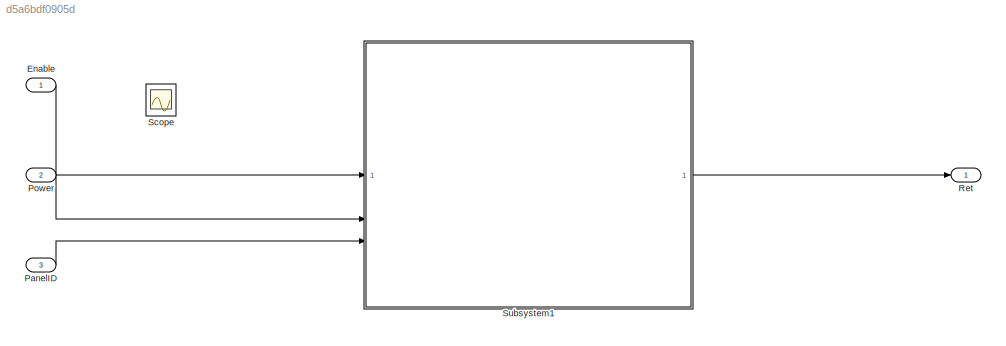
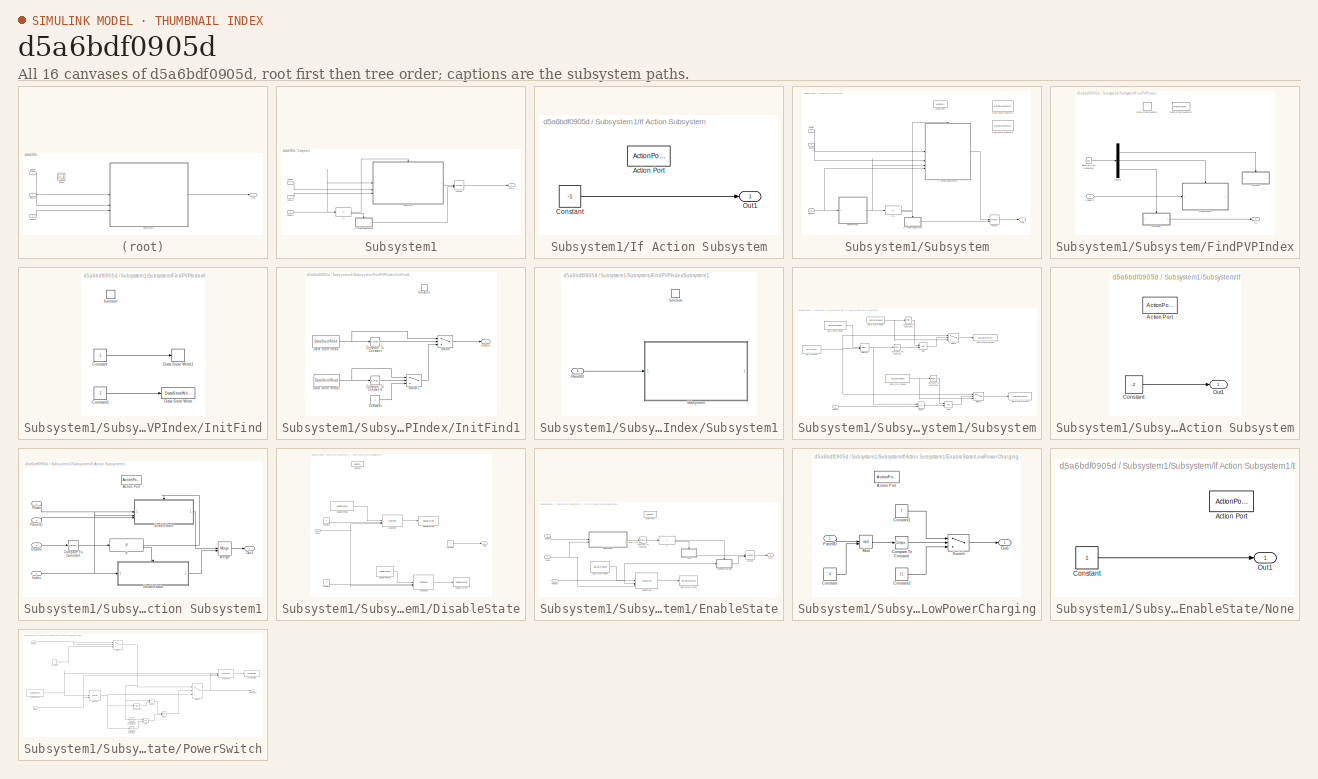
[diagram: thumbnail index - all 16 canvases of the model, root first then tree order]
MODEL slx_d5a6bdf0905d
KIND model
CONFIG AbsTol = auto
CONFIG EnableMultiTasking = off
CONFIG FixedStep = 1
CONFIG MaxStep = auto
CONFIG MinStep = auto
CONFIG RelTol = 1e-3
CONFIG SampleTimeConstraint = Unconstrained
CONFIG SolverName = FixedStepAuto
CONFIG StartTime = 0.0
CONFIG StopTime = 50000000
BLOCK [Inport] Enable
  OutDataTypeStr = int8
BLOCK [Inport] PanelID
  OutDataTypeStr = int32
  Port = 3
BLOCK [Inport] Power
  OutDataTypeStr = int32
  Port = 2
BLOCK [Outport] Ret
BLOCK [Scope] Scope
  Floating = off
  IOType = viewer
  NumInputPorts = 1
  ScopeSpecificationString = Simulink.scopes.TimeScopeBlockCfg('CurrentConfiguration', extmgr.ConfigurationSet(extmgr.Configuration('Core','General UI',true),extmgr.Configuration('Core','Source UI',true),extmgr.Configuration('Sources','WiredSimulink',true),extmgr.Configuration('Visuals','Time Domain',true),extmgr.Configuration('Tools','Plot Navigation',true),extmgr.Configuration('Tools','Measurements',true,'Version','2022b'))...<+49ch>
BLOCK [SubSystem] Subsystem1
BLOCK [Inport] Subsystem1/Enable
BLOCK [If] Subsystem1/If
BLOCK [SubSystem] Subsystem1/If Action Subsystem
  TreatAsAtomicUnit = on
BLOCK [ActionPort] Subsystem1/If Action Subsystem/Action Port
  ActionPortLabel = else
BLOCK [Constant] Subsystem1/If Action Subsystem/Constant
  OutDataTypeStr = int32
  Value = -1
BLOCK [Outport] Subsystem1/If Action Subsystem/Out1
BLOCK [Merge] Subsystem1/Merge
BLOCK [Outport] Subsystem1/Out1
BLOCK [Inport] Subsystem1/PanelID
  Port = 3
BLOCK [Inport] Subsystem1/Power
  Port = 2
BLOCK [SubSystem] Subsystem1/Subsystem
BLOCK [ActionPort] Subsystem1/Subsystem/Action Port
  ActionPortLabel = if(u1 > 0)
BLOCK [DataStoreMemory] Subsystem1/Subsystem/Data Store Memory1
  DataStoreName = PVPStates
  Dimensions = Len
  OutDataTypeStr = int32
  ShowAdditionalParam = off
  WriteAfterWriteMsg = warning
BLOCK [DataStoreMemory] Subsystem1/Subsystem/Data Store Memory2
  DataStoreName = PVPID
  Dimensions = Len
  OutDataTypeStr = int32
  ShowAdditionalParam = off
  WriteAfterWriteMsg = warning
BLOCK [Inport] Subsystem1/Subsystem/Enable
  Port = 2
BLOCK [SubSystem] Subsystem1/Subsystem/FindPVPIndex
  TreatAsAtomicUnit = on
BLOCK [DataStoreMemory] Subsystem1/Subsystem/FindPVPIndex/Data Store Memory
  DataStoreName = FindId
  OutDataTypeStr = int32
  ShowAdditionalParam = off
  WriteAfterWriteMsg = warning
BLOCK [DataStoreMemory] Subsystem1/Subsystem/FindPVPIndex/Data Store Memory1
  DataStoreName = FindEmptyId
  OutDataTypeStr = int32
  ShowAdditionalParam = off
  WriteAfterWriteMsg = warning
BLOCK [Demux] Subsystem1/Subsystem/FindPVPIndex/Demux
  Outputs = 3
BLOCK [Reference] Subsystem1/Subsystem/FindPVPIndex/Function-Call Generator  REF=simulink/Ports &
Subsystems/Function-Call
Generator
  SourceBlock = simulink/Ports &\nSubsystems/Function-Call\nGenerator
  SourceType = Function-Call Generator
BLOCK [Outport] Subsystem1/Subsystem/FindPVPIndex/Id
BLOCK [SubSystem] Subsystem1/Subsystem/FindPVPIndex/InitFind
BLOCK [Constant] Subsystem1/Subsystem/FindPVPIndex/InitFind/Constant
  OutDataTypeStr = int32
  Value = -1
BLOCK [Constant] Subsystem1/Subsystem/FindPVPIndex/InitFind/Constant1
  OutDataTypeStr = int32
  Value = -1
BLOCK [DataStoreWrite] Subsystem1/Subsystem/FindPVPIndex/InitFind/Data Store Write
  DataStoreName = FindEmptyId
  IndexOptions = Index vector (dialog)
  Indices = 1
  OutputSizes = 1
BLOCK [DataStoreWrite] Subsystem1/Subsystem/FindPVPIndex/InitFind/Data Store Write1
  DataStoreName = FindId
  IndexOptions = Index vector (dialog)
  Indices = 1
  OutputSizes = 1
BLOCK [TriggerPort] Subsystem1/Subsystem/FindPVPIndex/InitFind/function
  StatesWhenEnabling = held
  TriggerType = function-call
  VariantControl = Variant
BLOCK [SubSystem] Subsystem1/Subsystem/FindPVPIndex/InitFind1
BLOCK [Reference] Subsystem1/Subsystem/FindPVPIndex/InitFind1/Compare To Constant  REF=simulink/Logic and Bit
Operations/Compare
To Constant
  SourceBlock = simulink/Logic and Bit\nOperations/Compare\nTo Constant
  SourceType = Compare To Constant
BLOCK [Reference] Subsystem1/Subsystem/FindPVPIndex/InitFind1/Compare To Constant1  REF=simulink/Logic and Bit
Operations/Compare
To Constant
  SourceBlock = simulink/Logic and Bit\nOperations/Compare\nTo Constant
  SourceType = Compare To Constant
BLOCK [Constant] Subsystem1/Subsystem/FindPVPIndex/InitFind1/Constant
  OutDataTypeStr = int16
  Value = -1
BLOCK [DataStoreRead] Subsystem1/Subsystem/FindPVPIndex/InitFind1/Data Store Read
  DataStoreName = FindId
  IndexOptions = Index vector (dialog)
  Indices = 1
  OutputSizes = 1
BLOCK [DataStoreRead] Subsystem1/Subsystem/FindPVPIndex/InitFind1/Data Store Read1
  DataStoreName = FindEmptyId
  IndexOptions = Index vector (dialog)
  Indices = 1
  OutputSizes = 1
BLOCK [Switch] Subsystem1/Subsystem/FindPVPIndex/InitFind1/Switch
  Criteria = u2 ~= 0
  InputSameDT = off
  SaturateOnIntegerOverflow = off
BLOCK [Switch] Subsystem1/Subsystem/FindPVPIndex/InitFind1/Switch1
  Criteria = u2 ~= 0
  InputSameDT = off
  SaturateOnIntegerOverflow = off
BLOCK [TriggerPort] Subsystem1/Subsystem/FindPVPIndex/InitFind1/function
  StatesWhenEnabling = held
  TriggerType = function-call
  VariantControl = Variant
BLOCK [Outport] Subsystem1/Subsystem/FindPVPIndex/InitFind1/index
BLOCK [Inport] Subsystem1/Subsystem/FindPVPIndex/PanelID
BLOCK [SubSystem] Subsystem1/Subsystem/FindPVPIndex/Subsystem1
BLOCK [Inport] Subsystem1/Subsystem/FindPVPIndex/Subsystem1/PanelID
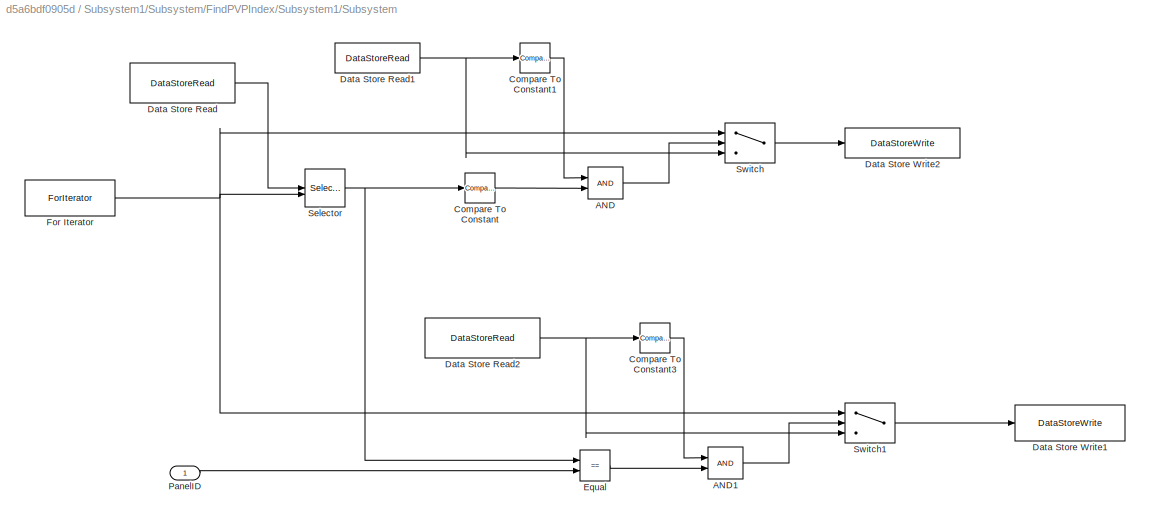
BLOCK [SubSystem] Subsystem1/Subsystem/FindPVPIndex/Subsystem1/Subsystem
BLOCK [Logic] Subsystem1/Subsystem/FindPVPIndex/Subsystem1/Subsystem/AND
  AllPortsSameDT = off
  IconShape = distinctive
  OutDataTypeStr = boolean
BLOCK [Logic] Subsystem1/Subsystem/FindPVPIndex/Subsystem1/Subsystem/AND1
  AllPortsSameDT = off
  IconShape = distinctive
  OutDataTypeStr = boolean
BLOCK [Reference] Subsystem1/Subsystem/FindPVPIndex/Subsystem1/Subsystem/Compare To Constant  REF=simulink/Logic and Bit
Operations/Compare
To Constant
  SourceBlock = simulink/Logic and Bit\nOperations/Compare\nTo Constant
  SourceType = Compare To Constant
BLOCK [Reference] Subsystem1/Subsystem/FindPVPIndex/Subsystem1/Subsystem/Compare To Constant1  REF=simulink/Logic and Bit
Operations/Compare
To Constant
  SourceBlock = simulink/Logic and Bit\nOperations/Compare\nTo Constant
  SourceType = Compare To Constant
BLOCK [Reference] Subsystem1/Subsystem/FindPVPIndex/Subsystem1/Subsystem/Compare To Constant3  REF=simulink/Logic and Bit
Operations/Compare
To Constant
  SourceBlock = simulink/Logic and Bit\nOperations/Compare\nTo Constant
  SourceType = Compare To Constant
BLOCK [DataStoreRead] Subsystem1/Subsystem/FindPVPIndex/Subsystem1/Subsystem/Data Store Read
  DataStoreName = PVPID
  IndexOptions = Index vector (dialog)
  Indices = 1
  OutputSizes = 1
BLOCK [DataStoreRead] Subsystem1/Subsystem/FindPVPIndex/Subsystem1/Subsystem/Data Store Read1
  DataStoreName = FindEmptyId
  IndexOptions = Index vector (dialog)
  Indices = 1
  OutputSizes = 1
BLOCK [DataStoreRead] Subsystem1/Subsystem/FindPVPIndex/Subsystem1/Subsystem/Data Store Read2
  DataStoreName = FindId
  IndexOptions = Index vector (dialog)
  Indices = 1
  OutputSizes = 1
BLOCK [DataStoreWrite] Subsystem1/Subsystem/FindPVPIndex/Subsystem1/Subsystem/Data Store Write1
  DataStoreName = FindId
  IndexOptions = Index vector (dialog)
  Indices = 1
  OutputSizes = 1
BLOCK [DataStoreWrite] Subsystem1/Subsystem/FindPVPIndex/Subsystem1/Subsystem/Data Store Write2
  DataStoreName = FindEmptyId
  IndexOptions = Index vector (dialog)
  Indices = 1
  OutputSizes = 1
BLOCK [RelationalOperator] Subsystem1/Subsystem/FindPVPIndex/Subsystem1/Subsystem/Equal
  InputSameDT = off
  Operator = ==
  OutDataTypeStr = boolean
  RndMeth = Simplest
BLOCK [ForIterator] Subsystem1/Subsystem/FindPVPIndex/Subsystem1/Subsystem/For Iterator
  IndexMode = Zero-based
  IterationLimit = Len
BLOCK [Inport] Subsystem1/Subsystem/FindPVPIndex/Subsystem1/Subsystem/PanelID
BLOCK [Selector] Subsystem1/Subsystem/FindPVPIndex/Subsystem1/Subsystem/Selector
  IndexMode = Zero-based
  IndexOptions = Index vector (port)
  Indices = [1 3]
  InputPortWidth = Len
  OutputSizes = 1
BLOCK [Switch] Subsystem1/Subsystem/FindPVPIndex/Subsystem1/Subsystem/Switch
  Criteria = u2 ~= 0
  InputSameDT = off
  SaturateOnIntegerOverflow = off
BLOCK [Switch] Subsystem1/Subsystem/FindPVPIndex/Subsystem1/Subsystem/Switch1
  Criteria = u2 ~= 0
  InputSameDT = off
  SaturateOnIntegerOverflow = off
BLOCK [TriggerPort] Subsystem1/Subsystem/FindPVPIndex/Subsystem1/function
  StatesWhenEnabling = held
  TriggerType = function-call
  VariantControl = Variant
BLOCK [SubSystem] Subsystem1/Subsystem/If Action Subsystem
  TreatAsAtomicUnit = on
BLOCK [ActionPort] Subsystem1/Subsystem/If Action Subsystem/Action Port
  ActionPortLabel = else
BLOCK [Constant] Subsystem1/Subsystem/If Action Subsystem/Constant
  OutDataTypeStr = int32
  Value = -2
BLOCK [Outport] Subsystem1/Subsystem/If Action Subsystem/Out1
BLOCK [SubSystem] Subsystem1/Subsystem/If Action Subsystem1
  TreatAsAtomicUnit = on
BLOCK [ActionPort] Subsystem1/Subsystem/If Action Subsystem1/Action Port
  ActionPortLabel = if(u1 >= 0)
BLOCK [Reference] Subsystem1/Subsystem/If Action Subsystem1/Compare To Constant  REF=simulink/Logic and Bit
Operations/Compare
To Constant
  SourceBlock = simulink/Logic and Bit\nOperations/Compare\nTo Constant
  SourceType = Compare To Constant
BLOCK [SubSystem] Subsystem1/Subsystem/If Action Subsystem1/DisableState
  TreatAsAtomicUnit = on
BLOCK [ActionPort] Subsystem1/Subsystem/If Action Subsystem1/DisableState/Action Port
  ActionPortLabel = else
BLOCK [Assignment] Subsystem1/Subsystem/If Action Subsystem1/DisableState/Assignment
  DiagnosticForDimensions = Warning
  IndexMode = Zero-based
  IndexOptions = Index vector (port)
  Indices = 1
  OutputSizes = 1
BLOCK [Assignment] Subsystem1/Subsystem/If Action Subsystem1/DisableState/Assignment1
  DiagnosticForDimensions = Warning
  IndexMode = Zero-based
  IndexOptions = Index vector (port)
  Indices = 1
  OutputSizes = 1
BLOCK [Constant] Subsystem1/Subsystem/If Action Subsystem1/DisableState/Constant
  OutDataTypeStr = int32
  Value = 0
BLOCK [Constant] Subsystem1/Subsystem/If Action Subsystem1/DisableState/Constant1
  OutDataTypeStr = int32
  Value = 0
BLOCK [Constant] Subsystem1/Subsystem/If Action Subsystem1/DisableState/Constant2
  OutDataTypeStr = int32
  Value = -1
BLOCK [DataStoreRead] Subsystem1/Subsystem/If Action Subsystem1/DisableState/Data Store Read
  DataStoreName = PVPStates
  IndexOptions = Index vector (dialog)
  Indices = 1
  OutputSizes = 1
BLOCK [DataStoreRead] Subsystem1/Subsystem/If Action Subsystem1/DisableState/Data Store Read1
  DataStoreName = PVPID
  IndexOptions = Index vector (dialog)
  Indices = 1
  OutputSizes = 1
BLOCK [DataStoreWrite] Subsystem1/Subsystem/If Action Subsystem1/DisableState/Data Store Write
  DataStoreName = PVPStates
  IndexOptions = Index vector (dialog)
  Indices = 1
  OutputSizes = 1
BLOCK [DataStoreWrite] Subsystem1/Subsystem/If Action Subsystem1/DisableState/Data Store Write1
  DataStoreName = PVPID
  IndexOptions = Index vector (dialog)
  Indices = 1
  OutputSizes = 1
BLOCK [Inport] Subsystem1/Subsystem/If Action Subsystem1/DisableState/Index
BLOCK [Outport] Subsystem1/Subsystem/If Action Subsystem1/DisableState/Out1
BLOCK [Inport] Subsystem1/Subsystem/If Action Subsystem1/Enable
BLOCK [SubSystem] Subsystem1/Subsystem/If Action Subsystem1/EnableState
  TreatAsAtomicUnit = on
BLOCK [ActionPort] Subsystem1/Subsystem/If Action Subsystem1/EnableState/Action Port
  ActionPortLabel = if(u1 ~= 0)
BLOCK [Assignment] Subsystem1/Subsystem/If Action Subsystem1/EnableState/Assignment
  DiagnosticForDimensions = Warning
  IndexMode = Zero-based
  IndexOptions = Index vector (port)
  Indices = 1
  OutputSizes = 1
BLOCK [Reference] Subsystem1/Subsystem/If Action Subsystem1/EnableState/Compare To Constant  REF=simulink/Logic and Bit
Operations/Compare
To Constant
  SourceBlock = simulink/Logic and Bit\nOperations/Compare\nTo Constant
  SourceType = Compare To Constant
BLOCK [DataStoreRead] Subsystem1/Subsystem/If Action Subsystem1/EnableState/Data Store Read
  DataStoreName = PVPID
  IndexOptions = Index vector (dialog)
  Indices = 1
  OutputSizes = 1
BLOCK [DataStoreWrite] Subsystem1/Subsystem/If Action Subsystem1/EnableState/Data Store Write
  DataStoreName = PVPID
  IndexOptions = Index vector (dialog)
  Indices = 1
  OutputSizes = 1
BLOCK [If] Subsystem1/Subsystem/If Action Subsystem1/EnableState/If
  IfExpression = u1 ~= 0
BLOCK [Inport] Subsystem1/Subsystem/If Action Subsystem1/EnableState/Index
  OutDataTypeStr = int32
  Port = 2
BLOCK [SubSystem] Subsystem1/Subsystem/If Action Subsystem1/EnableState/LowPowerCharging
  TreatAsAtomicUnit = on
BLOCK [ActionPort] Subsystem1/Subsystem/If Action Subsystem1/EnableState/LowPowerCharging/Action Port
  ActionPortLabel = if(u1 ~= 0)
BLOCK [Reference] Subsystem1/Subsystem/If Action Subsystem1/EnableState/LowPowerCharging/Compare To Constant  REF=simulink/Logic and Bit
Operations/Compare
To Constant
  SourceBlock = simulink/Logic and Bit\nOperations/Compare\nTo Constant
  SourceType = Compare To Constant
BLOCK [Constant] Subsystem1/Subsystem/If Action Subsystem1/EnableState/LowPowerCharging/Constant
  OutDataTypeStr = int32
  Value = 4
BLOCK [Constant] Subsystem1/Subsystem/If Action Subsystem1/EnableState/LowPowerCharging/Constant1
  OutDataTypeStr = int32
  Value = 7
BLOCK [Constant] Subsystem1/Subsystem/If Action Subsystem1/EnableState/LowPowerCharging/Constant2
  OutDataTypeStr = int32
  Value = 11
BLOCK [Math] Subsystem1/Subsystem/If Action Subsystem1/EnableState/LowPowerCharging/Mod
  Operator = mod
BLOCK [Outport] Subsystem1/Subsystem/If Action Subsystem1/EnableState/LowPowerCharging/Out1
BLOCK [Inport] Subsystem1/Subsystem/If Action Subsystem1/EnableState/LowPowerCharging/PanelID
BLOCK [Switch] Subsystem1/Subsystem/If Action Subsystem1/EnableState/LowPowerCharging/Switch
  Criteria = u2 ~= 0
  InputSameDT = off
  SaturateOnIntegerOverflow = off
BLOCK [Merge] Subsystem1/Subsystem/If Action Subsystem1/EnableState/Merge
BLOCK [SubSystem] Subsystem1/Subsystem/If Action Subsystem1/EnableState/None
  TreatAsAtomicUnit = on
BLOCK [ActionPort] Subsystem1/Subsystem/If Action Subsystem1/EnableState/None/Action Port
  ActionPortLabel = else
BLOCK [Constant] Subsystem1/Subsystem/If Action Subsystem1/EnableState/None/Constant
  OutDataTypeStr = int32
BLOCK [Outport] Subsystem1/Subsystem/If Action Subsystem1/EnableState/None/Out1
BLOCK [Outport] Subsystem1/Subsystem/If Action Subsystem1/EnableState/Out1
BLOCK [Inport] Subsystem1/Subsystem/If Action Subsystem1/EnableState/PanelID
  Port = 3
BLOCK [Inport] Subsystem1/Subsystem/If Action Subsystem1/EnableState/Power
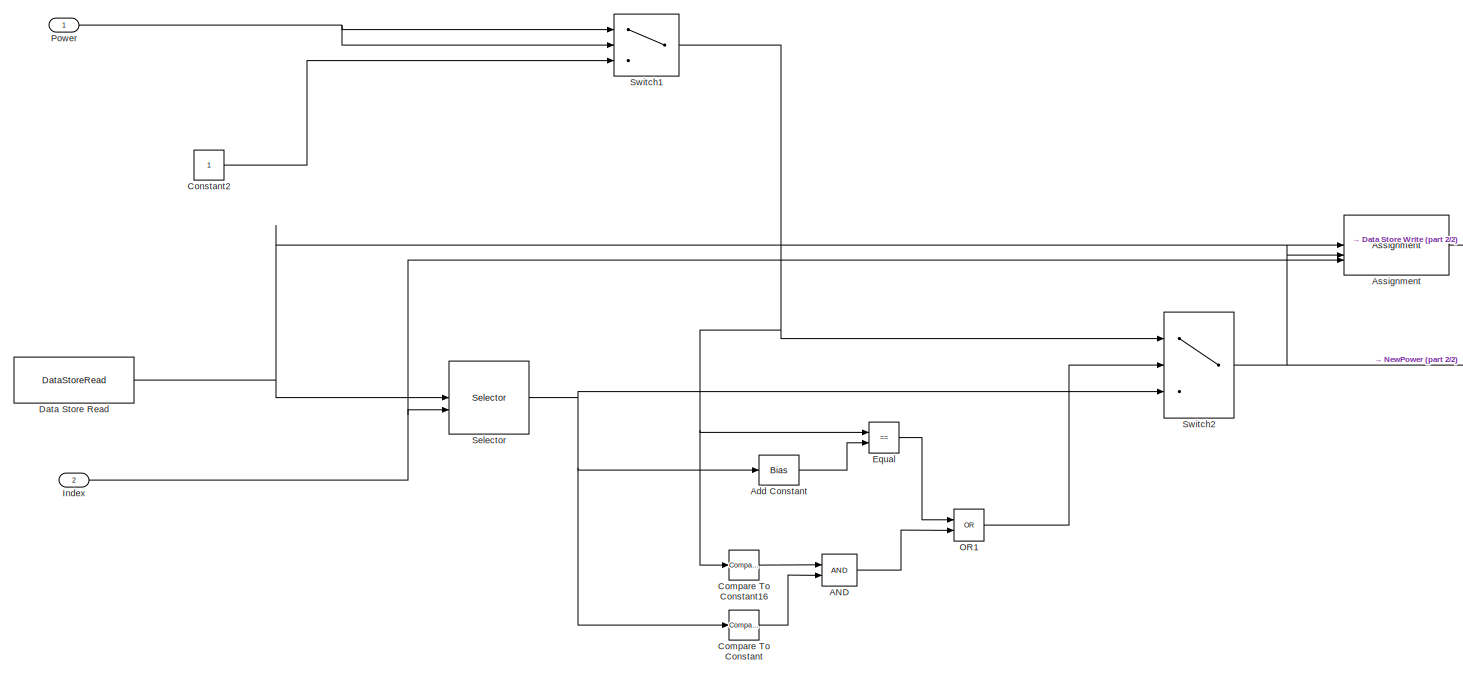
[diagram: Subsystem1/Subsystem/If Action Subsystem1/EnableState/PowerSwitch - part 1/2, most of the canvas]
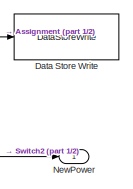
[diagram: Subsystem1/Subsystem/If Action Subsystem1/EnableState/PowerSwitch - part 2/2, middle right region]
BLOCK [SubSystem] Subsystem1/Subsystem/If Action Subsystem1/EnableState/PowerSwitch
  TreatAsAtomicUnit = on
BLOCK [Logic] Subsystem1/Subsystem/If Action Subsystem1/EnableState/PowerSwitch/AND
  AllPortsSameDT = off
  IconShape = distinctive
  OutDataTypeStr = boolean
BLOCK [Bias] Subsystem1/Subsystem/If Action Subsystem1/EnableState/PowerSwitch/Add Constant
  Bias = 1
  SaturateOnIntegerOverflow = off
BLOCK [Assignment] Subsystem1/Subsystem/If Action Subsystem1/EnableState/PowerSwitch/Assignment
  DiagnosticForDimensions = Warning
  IndexMode = Zero-based
  IndexOptions = Index vector (port)
  Indices = 1
  OutputSizes = 1
BLOCK [Reference] Subsystem1/Subsystem/If Action Subsystem1/EnableState/PowerSwitch/Compare To Constant  REF=simulink/Logic and Bit
Operations/Compare
To Constant
  SourceBlock = simulink/Logic and Bit\nOperations/Compare\nTo Constant
  SourceType = Compare To Constant
BLOCK [Reference] Subsystem1/Subsystem/If Action Subsystem1/EnableState/PowerSwitch/Compare To Constant16  REF=simulink/Logic and Bit
Operations/Compare
To Constant
  SourceBlock = simulink/Logic and Bit\nOperations/Compare\nTo Constant
  SourceType = Compare To Constant
BLOCK [Constant] Subsystem1/Subsystem/If Action Subsystem1/EnableState/PowerSwitch/Constant2
  OutDataTypeStr = int32
BLOCK [DataStoreRead] Subsystem1/Subsystem/If Action Subsystem1/EnableState/PowerSwitch/Data Store Read
  DataStoreName = PVPStates
  IndexOptions = Index vector (dialog)
  Indices = 1
  OutputSizes = 1
BLOCK [DataStoreWrite] Subsystem1/Subsystem/If Action Subsystem1/EnableState/PowerSwitch/Data Store Write
  DataStoreName = PVPStates
  IndexOptions = Index vector (dialog)
  Indices = 1
  OutputSizes = 1
BLOCK [RelationalOperator] Subsystem1/Subsystem/If Action Subsystem1/EnableState/PowerSwitch/Equal
  InputSameDT = off
  Operator = ==
  OutDataTypeStr = boolean
  RndMeth = Simplest
BLOCK [Inport] Subsystem1/Subsystem/If Action Subsystem1/EnableState/PowerSwitch/Index
  OutDataTypeStr = int32
  Port = 2
BLOCK [Outport] Subsystem1/Subsystem/If Action Subsystem1/EnableState/PowerSwitch/NewPower
BLOCK [Logic] Subsystem1/Subsystem/If Action Subsystem1/EnableState/PowerSwitch/OR1
  AllPortsSameDT = off
  IconShape = distinctive
  Operator = OR
  OutDataTypeStr = boolean
BLOCK [Inport] Subsystem1/Subsystem/If Action Subsystem1/EnableState/PowerSwitch/Power
BLOCK [Selector] Subsystem1/Subsystem/If Action Subsystem1/EnableState/PowerSwitch/Selector
  IndexMode = Zero-based
  IndexOptions = Index vector (port)
  Indices = [1 3]
  InputPortWidth = Len
  OutputSizes = 1
BLOCK [Switch] Subsystem1/Subsystem/If Action Subsystem1/EnableState/PowerSwitch/Switch1
  Criteria = u2 > Threshold
  InputSameDT = off
  SaturateOnIntegerOverflow = off
BLOCK [Switch] Subsystem1/Subsystem/If Action Subsystem1/EnableState/PowerSwitch/Switch2
  Criteria = u2 > Threshold
  InputSameDT = off
  SaturateOnIntegerOverflow = off
BLOCK [If] Subsystem1/Subsystem/If Action Subsystem1/If
  IfExpression = u1 ~= 0
BLOCK [Inport] Subsystem1/Subsystem/If Action Subsystem1/Index
  OutDataTypeStr = int32
  Port = 3
BLOCK [Merge] Subsystem1/Subsystem/If Action Subsystem1/Merge
BLOCK [Outport] Subsystem1/Subsystem/If Action Subsystem1/Out1
BLOCK [Inport] Subsystem1/Subsystem/If Action Subsystem1/PanelID
  Port = 4
BLOCK [Inport] Subsystem1/Subsystem/If Action Subsystem1/Power
  Port = 2
BLOCK [If] Subsystem1/Subsystem/If1
  IfExpression = u1 >= 0
BLOCK [Merge] Subsystem1/Subsystem/Merge
BLOCK [Inport] Subsystem1/Subsystem/PanelID
  OutDataTypeStr = int32
BLOCK [Inport] Subsystem1/Subsystem/Power
  Port = 3
BLOCK [Outport] Subsystem1/Subsystem/Ret
ANNOTATION Subsystem1/Subsystem/If Action Subsystem1/EnableState: low power charging
LINE Enable:1 -> Subsystem1:1
LINE PanelID:1 -> Subsystem1:3
LINE Power:1 -> Subsystem1:2
LINE Subsystem1/Enable:1 -> Subsystem1/Subsystem:2
LINE Subsystem1/If Action Subsystem/Constant:1 -> Subsystem1/If Action Subsystem/Out1:1
LINE Subsystem1/If Action Subsystem:1 -> Subsystem1/Merge:2
LINE Subsystem1/If:1 -> Subsystem1/Subsystem:ifaction
LINE Subsystem1/If:2 -> Subsystem1/If Action Subsystem:ifaction
LINE Subsystem1/Merge:1 -> Subsystem1/Out1:1
NET Subsystem1/PanelID:1 -> Subsystem1/If:1, Subsystem1/Subsystem:1
LINE Subsystem1/Power:1 -> Subsystem1/Subsystem:3
LINE Subsystem1/Subsystem/Enable:1 -> Subsystem1/Subsystem/If Action Subsystem1:1
LINE Subsystem1/Subsystem/FindPVPIndex/Demux:1 -> Subsystem1/Subsystem/FindPVPIndex/InitFind:trigger
LINE Subsystem1/Subsystem/FindPVPIndex/Demux:2 -> Subsystem1/Subsystem/FindPVPIndex/Subsystem1:trigger
LINE Subsystem1/Subsystem/FindPVPIndex/Demux:3 -> Subsystem1/Subsystem/FindPVPIndex/InitFind1:trigger
LINE Subsystem1/Subsystem/FindPVPIndex/Function-Call Generator:1 -> Subsystem1/Subsystem/FindPVPIndex/Demux:1
LINE Subsystem1/Subsystem/FindPVPIndex/InitFind/Constant1:1 -> Subsystem1/Subsystem/FindPVPIndex/InitFind/Data Store Write:1
LINE Subsystem1/Subsystem/FindPVPIndex/InitFind/Constant:1 -> Subsystem1/Subsystem/FindPVPIndex/InitFind/Data Store Write1:1
LINE Subsystem1/Subsystem/FindPVPIndex/InitFind1/Compare To Constant1:1 -> Subsystem1/Subsystem/FindPVPIndex/InitFind1/Switch1:2
LINE Subsystem1/Subsystem/FindPVPIndex/InitFind1/Compare To Constant:1 -> Subsystem1/Subsystem/FindPVPIndex/InitFind1/Switch:2
LINE Subsystem1/Subsystem/FindPVPIndex/InitFind1/Constant:1 -> Subsystem1/Subsystem/FindPVPIndex/InitFind1/Switch1:3
NET Subsystem1/Subsystem/FindPVPIndex/InitFind1/Data Store Read1:1 -> Subsystem1/Subsystem/FindPVPIndex/InitFind1/Compare To Constant1:1, Subsystem1/Subsystem/FindPVPIndex/InitFind1/Switch1:1
NET Subsystem1/Subsystem/FindPVPIndex/InitFind1/Data Store Read:1 -> Subsystem1/Subsystem/FindPVPIndex/InitFind1/Compare To Constant:1, Subsystem1/Subsystem/FindPVPIndex/InitFind1/Switch:1
LINE Subsystem1/Subsystem/FindPVPIndex/InitFind1/Switch1:1 -> Subsystem1/Subsystem/FindPVPIndex/InitFind1/Switch:3
LINE Subsystem1/Subsystem/FindPVPIndex/InitFind1/Switch:1 -> Subsystem1/Subsystem/FindPVPIndex/InitFind1/index:1
LINE Subsystem1/Subsystem/FindPVPIndex/InitFind1:1 -> Subsystem1/Subsystem/FindPVPIndex/Id:1
LINE Subsystem1/Subsystem/FindPVPIndex/PanelID:1 -> Subsystem1/Subsystem/FindPVPIndex/Subsystem1:1
LINE Subsystem1/Subsystem/FindPVPIndex/Subsystem1/PanelID:1 -> Subsystem1/Subsystem/FindPVPIndex/Subsystem1/Subsystem:1
LINE Subsystem1/Subsystem/FindPVPIndex/Subsystem1/Subsystem/AND1:1 -> Subsystem1/Subsystem/FindPVPIndex/Subsystem1/Subsystem/Switch1:2
LINE Subsystem1/Subsystem/FindPVPIndex/Subsystem1/Subsystem/AND:1 -> Subsystem1/Subsystem/FindPVPIndex/Subsystem1/Subsystem/Switch:2
LINE Subsystem1/Subsystem/FindPVPIndex/Subsystem1/Subsystem/Compare To Constant1:1 -> Subsystem1/Subsystem/FindPVPIndex/Subsystem1/Subsystem/AND:1
LINE Subsystem1/Subsystem/FindPVPIndex/Subsystem1/Subsystem/Compare To Constant3:1 -> Subsystem1/Subsystem/FindPVPIndex/Subsystem1/Subsystem/AND1:1
LINE Subsystem1/Subsystem/FindPVPIndex/Subsystem1/Subsystem/Compare To Constant:1 -> Subsystem1/Subsystem/FindPVPIndex/Subsystem1/Subsystem/AND:2
NET Subsystem1/Subsystem/FindPVPIndex/Subsystem1/Subsystem/Data Store Read1:1 -> Subsystem1/Subsystem/FindPVPIndex/Subsystem1/Subsystem/Compare To Constant1:1, Subsystem1/Subsystem/FindPVPIndex/Subsystem1/Subsystem/Switch:3
NET Subsystem1/Subsystem/FindPVPIndex/Subsystem1/Subsystem/Data Store Read2:1 -> Subsystem1/Subsystem/FindPVPIndex/Subsystem1/Subsystem/Compare To Constant3:1, Subsystem1/Subsystem/FindPVPIndex/Subsystem1/Subsystem/Switch1:3
LINE Subsystem1/Subsystem/FindPVPIndex/Subsystem1/Subsystem/Data Store Read:1 -> Subsystem1/Subsystem/FindPVPIndex/Subsystem1/Subsystem/Selector:1
LINE Subsystem1/Subsystem/FindPVPIndex/Subsystem1/Subsystem/Equal:1 -> Subsystem1/Subsystem/FindPVPIndex/Subsystem1/Subsystem/AND1:2
NET Subsystem1/Subsystem/FindPVPIndex/Subsystem1/Subsystem/For Iterator:1 -> Subsystem1/Subsystem/FindPVPIndex/Subsystem1/Subsystem/Selector:2, Subsystem1/Subsystem/FindPVPIndex/Subsystem1/Subsystem/Switch1:1, Subsystem1/Subsystem/FindPVPIndex/Subsystem1/Subsystem/Switch:1
LINE Subsystem1/Subsystem/FindPVPIndex/Subsystem1/Subsystem/PanelID:1 -> Subsystem1/Subsystem/FindPVPIndex/Subsystem1/Subsystem/Equal:2
NET Subsystem1/Subsystem/FindPVPIndex/Subsystem1/Subsystem/Selector:1 -> Subsystem1/Subsystem/FindPVPIndex/Subsystem1/Subsystem/Compare To Constant:1, Subsystem1/Subsystem/FindPVPIndex/Subsystem1/Subsystem/Equal:1
LINE Subsystem1/Subsystem/FindPVPIndex/Subsystem1/Subsystem/Switch1:1 -> Subsystem1/Subsystem/FindPVPIndex/Subsystem1/Subsystem/Data Store Write1:1
LINE Subsystem1/Subsystem/FindPVPIndex/Subsystem1/Subsystem/Switch:1 -> Subsystem1/Subsystem/FindPVPIndex/Subsystem1/Subsystem/Data Store Write2:1
NET Subsystem1/Subsystem/FindPVPIndex:1 -> Subsystem1/Subsystem/If Action Subsystem1:3, Subsystem1/Subsystem/If1:1
LINE Subsystem1/Subsystem/If Action Subsystem/Constant:1 -> Subsystem1/Subsystem/If Action Subsystem/Out1:1
LINE Subsystem1/Subsystem/If Action Subsystem1/Compare To Constant:1 -> Subsystem1/Subsystem/If Action Subsystem1/If:1
LINE Subsystem1/Subsystem/If Action Subsystem1/DisableState/Assignment1:1 -> Subsystem1/Subsystem/If Action Subsystem1/DisableState/Data Store Write1:1
LINE Subsystem1/Subsystem/If Action Subsystem1/DisableState/Assignment:1 -> Subsystem1/Subsystem/If Action Subsystem1/DisableState/Data Store Write:1
LINE Subsystem1/Subsystem/If Action Subsystem1/DisableState/Constant1:1 -> Subsystem1/Subsystem/If Action Subsystem1/DisableState/Assignment1:2
LINE Subsystem1/Subsystem/If Action Subsystem1/DisableState/Constant2:1 -> Subsystem1/Subsystem/If Action Subsystem1/DisableState/Out1:1
LINE Subsystem1/Subsystem/If Action Subsystem1/DisableState/Constant:1 -> Subsystem1/Subsystem/If Action Subsystem1/DisableState/Assignment:2
LINE Subsystem1/Subsystem/If Action Subsystem1/DisableState/Data Store Read1:1 -> Subsystem1/Subsystem/If Action Subsystem1/DisableState/Assignment1:1
LINE Subsystem1/Subsystem/If Action Subsystem1/DisableState/Data Store Read:1 -> Subsystem1/Subsystem/If Action Subsystem1/DisableState/Assignment:1
NET Subsystem1/Subsystem/If Action Subsystem1/DisableState/Index:1 -> Subsystem1/Subsystem/If Action Subsystem1/DisableState/Assignment1:3, Subsystem1/Subsystem/If Action Subsystem1/DisableState/Assignment:3
LINE Subsystem1/Subsystem/If Action Subsystem1/DisableState:1 -> Subsystem1/Subsystem/If Action Subsystem1/Merge:2
LINE Subsystem1/Subsystem/If Action Subsystem1/Enable:1 -> Subsystem1/Subsystem/If Action Subsystem1/Compare To Constant:1
LINE Subsystem1/Subsystem/If Action Subsystem1/EnableState/Assignment:1 -> Subsystem1/Subsystem/If Action Subsystem1/EnableState/Data Store Write:1
LINE Subsystem1/Subsystem/If Action Subsystem1/EnableState/Compare To Constant:1 -> Subsystem1/Subsystem/If Action Subsystem1/EnableState/If:1
LINE Subsystem1/Subsystem/If Action Subsystem1/EnableState/Data Store Read:1 -> Subsystem1/Subsystem/If Action Subsystem1/EnableState/Assignment:1
LINE Subsystem1/Subsystem/If Action Subsystem1/EnableState/If:1 -> Subsystem1/Subsystem/If Action Subsystem1/EnableState/LowPowerCharging:ifaction
LINE Subsystem1/Subsystem/If Action Subsystem1/EnableState/If:2 -> Subsystem1/Subsystem/If Action Subsystem1/EnableState/None:ifaction
NET Subsystem1/Subsystem/If Action Subsystem1/EnableState/Index:1 -> Subsystem1/Subsystem/If Action Subsystem1/EnableState/Assignment:3, Subsystem1/Subsystem/If Action Subsystem1/EnableState/PowerSwitch:2
LINE Subsystem1/Subsystem/If Action Subsystem1/EnableState/LowPowerCharging/Compare To Constant:1 -> Subsystem1/Subsystem/If Action Subsystem1/EnableState/LowPowerCharging/Switch:2
LINE Subsystem1/Subsystem/If Action Subsystem1/EnableState/LowPowerCharging/Constant1:1 -> Subsystem1/Subsystem/If Action Subsystem1/EnableState/LowPowerCharging/Switch:1
LINE Subsystem1/Subsystem/If Action Subsystem1/EnableState/LowPowerCharging/Constant2:1 -> Subsystem1/Subsystem/If Action Subsystem1/EnableState/LowPowerCharging/Switch:3
LINE Subsystem1/Subsystem/If Action Subsystem1/EnableState/LowPowerCharging/Constant:1 -> Subsystem1/Subsystem/If Action Subsystem1/EnableState/LowPowerCharging/Mod:2
LINE Subsystem1/Subsystem/If Action Subsystem1/EnableState/LowPowerCharging/Mod:1 -> Subsystem1/Subsystem/If Action Subsystem1/EnableState/LowPowerCharging/Compare To Constant:1
LINE Subsystem1/Subsystem/If Action Subsystem1/EnableState/LowPowerCharging/PanelID:1 -> Subsystem1/Subsystem/If Action Subsystem1/EnableState/LowPowerCharging/Mod:1
LINE Subsystem1/Subsystem/If Action Subsystem1/EnableState/LowPowerCharging/Switch:1 -> Subsystem1/Subsystem/If Action Subsystem1/EnableState/LowPowerCharging/Out1:1
LINE Subsystem1/Subsystem/If Action Subsystem1/EnableState/LowPowerCharging:1 -> Subsystem1/Subsystem/If Action Subsystem1/EnableState/Merge:2
LINE Subsystem1/Subsystem/If Action Subsystem1/EnableState/Merge:1 -> Subsystem1/Subsystem/If Action Subsystem1/EnableState/Out1:1
LINE Subsystem1/Subsystem/If Action Subsystem1/EnableState/None/Constant:1 -> Subsystem1/Subsystem/If Action Subsystem1/EnableState/None/Out1:1
LINE Subsystem1/Subsystem/If Action Subsystem1/EnableState/None:1 -> Subsystem1/Subsystem/If Action Subsystem1/EnableState/Merge:1
NET Subsystem1/Subsystem/If Action Subsystem1/EnableState/PanelID:1 -> Subsystem1/Subsystem/If Action Subsystem1/EnableState/Assignment:2, Subsystem1/Subsystem/If Action Subsystem1/EnableState/LowPowerCharging:1
LINE Subsystem1/Subsystem/If Action Subsystem1/EnableState/Power:1 -> Subsystem1/Subsystem/If Action Subsystem1/EnableState/PowerSwitch:1
LINE Subsystem1/Subsystem/If Action Subsystem1/EnableState/PowerSwitch/AND:1 -> Subsystem1/Subsystem/If Action Subsystem1/EnableState/PowerSwitch/OR1:2
LINE Subsystem1/Subsystem/If Action Subsystem1/EnableState/PowerSwitch/Add Constant:1 -> Subsystem1/Subsystem/If Action Subsystem1/EnableState/PowerSwitch/Equal:2
LINE Subsystem1/Subsystem/If Action Subsystem1/EnableState/PowerSwitch/Assignment:1 -> Subsystem1/Subsystem/If Action Subsystem1/EnableState/PowerSwitch/Data Store Write:1
LINE Subsystem1/Subsystem/If Action Subsystem1/EnableState/PowerSwitch/Compare To Constant16:1 -> Subsystem1/Subsystem/If Action Subsystem1/EnableState/PowerSwitch/AND:1
LINE Subsystem1/Subsystem/If Action Subsystem1/EnableState/PowerSwitch/Compare To Constant:1 -> Subsystem1/Subsystem/If Action Subsystem1/EnableState/PowerSwitch/AND:2
LINE Subsystem1/Subsystem/If Action Subsystem1/EnableState/PowerSwitch/Constant2:1 -> Subsystem1/Subsystem/If Action Subsystem1/EnableState/PowerSwitch/Switch1:3
NET Subsystem1/Subsystem/If Action Subsystem1/EnableState/PowerSwitch/Data Store Read:1 -> Subsystem1/Subsystem/If Action Subsystem1/EnableState/PowerSwitch/Assignment:1, Subsystem1/Subsystem/If Action Subsystem1/EnableState/PowerSwitch/Selector:1
LINE Subsystem1/Subsystem/If Action Subsystem1/EnableState/PowerSwitch/Equal:1 -> Subsystem1/Subsystem/If Action Subsystem1/EnableState/PowerSwitch/OR1:1
NET Subsystem1/Subsystem/If Action Subsystem1/EnableState/PowerSwitch/Index:1 -> Subsystem1/Subsystem/If Action Subsystem1/EnableState/PowerSwitch/Assignment:3, Subsystem1/Subsystem/If Action Subsystem1/EnableState/PowerSwitch/Selector:2
LINE Subsystem1/Subsystem/If Action Subsystem1/EnableState/PowerSwitch/OR1:1 -> Subsystem1/Subsystem/If Action Subsystem1/EnableState/PowerSwitch/Switch2:2
NET Subsystem1/Subsystem/If Action Subsystem1/EnableState/PowerSwitch/Power:1 -> Subsystem1/Subsystem/If Action Subsystem1/EnableState/PowerSwitch/Switch1:1, Subsystem1/Subsystem/If Action Subsystem1/EnableState/PowerSwitch/Switch1:2
NET Subsystem1/Subsystem/If Action Subsystem1/EnableState/PowerSwitch/Selector:1 -> Subsystem1/Subsystem/If Action Subsystem1/EnableState/PowerSwitch/Add Constant:1, Subsystem1/Subsystem/If Action Subsystem1/EnableState/PowerSwitch/Compare To Constant:1, Subsystem1/Subsystem/If Action Subsystem1/EnableState/PowerSwitch/Switch2:3
NET Subsystem1/Subsystem/If Action Subsystem1/EnableState/PowerSwitch/Switch1:1 -> Subsystem1/Subsystem/If Action Subsystem1/EnableState/PowerSwitch/Compare To Constant16:1, Subsystem1/Subsystem/If Action Subsystem1/EnableState/PowerSwitch/Equal:1, Subsystem1/Subsystem/If Action Subsystem1/EnableState/PowerSwitch/Switch2:1
NET Subsystem1/Subsystem/If Action Subsystem1/EnableState/PowerSwitch/Switch2:1 -> Subsystem1/Subsystem/If Action Subsystem1/EnableState/PowerSwitch/Assignment:2, Subsystem1/Subsystem/If Action Subsystem1/EnableState/PowerSwitch/NewPower:1
LINE Subsystem1/Subsystem/If Action Subsystem1/EnableState/PowerSwitch:1 -> Subsystem1/Subsystem/If Action Subsystem1/EnableState/Compare To Constant:1
LINE Subsystem1/Subsystem/If Action Subsystem1/EnableState:1 -> Subsystem1/Subsystem/If Action Subsystem1/Merge:1
LINE Subsystem1/Subsystem/If Action Subsystem1/If:1 -> Subsystem1/Subsystem/If Action Subsystem1/EnableState:ifaction
LINE Subsystem1/Subsystem/If Action Subsystem1/If:2 -> Subsystem1/Subsystem/If Action Subsystem1/DisableState:ifaction
NET Subsystem1/Subsystem/If Action Subsystem1/Index:1 -> Subsystem1/Subsystem/If Action Subsystem1/DisableState:1, Subsystem1/Subsystem/If Action Subsystem1/EnableState:2
LINE Subsystem1/Subsystem/If Action Subsystem1/Merge:1 -> Subsystem1/Subsystem/If Action Subsystem1/Out1:1
LINE Subsystem1/Subsystem/If Action Subsystem1/PanelID:1 -> Subsystem1/Subsystem/If Action Subsystem1/EnableState:3
LINE Subsystem1/Subsystem/If Action Subsystem1/Power:1 -> Subsystem1/Subsystem/If Action Subsystem1/EnableState:1
LINE Subsystem1/Subsystem/If Action Subsystem1:1 -> Subsystem1/Subsystem/Merge:1
LINE Subsystem1/Subsystem/If Action Subsystem:1 -> Subsystem1/Subsystem/Merge:2
LINE Subsystem1/Subsystem/If1:1 -> Subsystem1/Subsystem/If Action Subsystem1:ifaction
LINE Subsystem1/Subsystem/If1:2 -> Subsystem1/Subsystem/If Action Subsystem:ifaction
LINE Subsystem1/Subsystem/Merge:1 -> Subsystem1/Subsystem/Ret:1
NET Subsystem1/Subsystem/PanelID:1 -> Subsystem1/Subsystem/FindPVPIndex:1, Subsystem1/Subsystem/If Action Subsystem1:4
LINE Subsystem1/Subsystem/Power:1 -> Subsystem1/Subsystem/If Action Subsystem1:2
LINE Subsystem1/Subsystem:1 -> Subsystem1/Merge:1
LINE Subsystem1:1 -> Ret:1
note: NET lines group one-source signal fan-out (src -> all destinations, sorted); 1:1 wires keep LINE
